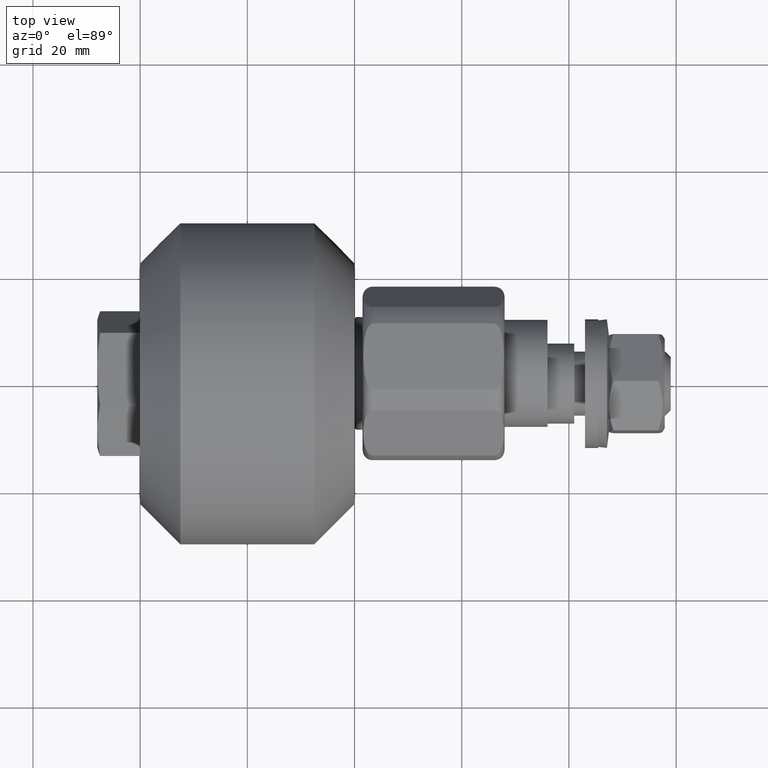
[diagram: clean part render]
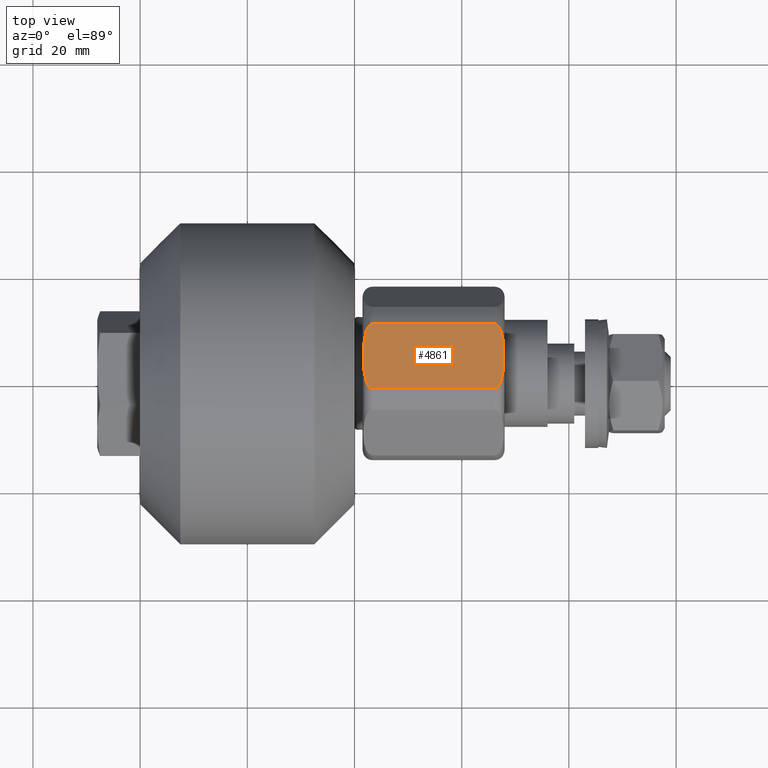
[diagram: same view with one face highlighted and labeled with its STEP entity id]
A machine part, top view. The second image highlights one B-rep face of the part: STEP entity #4861.
In plain terms, the highlighted planar face has unit normal (-0, 0.198, 0.9802).
Its self-contained STEP definition (entity closure, byte-faithful):
#194=B_SPLINE_CURVE_WITH_KNOTS('',3,(#7402,#7403,#7404,#7405,#7406,#7407,
#7408,#7409,#7410,#7411,#7412,#7413,#7414,#7415,#7416,#7417,#7418,#7419,
#7420,#7421,#7422,#7423,#7424),.UNSPECIFIED.,.F.,.F.,(4,2,2,2,2,3,2,2,2,
2,4),(-0.65445505176569,-0.615458381337922,-0.55918216331077,-0.457887403956305,
-0.228943701978152,0.,0.228943701978153,0.457887403956305,0.559182163310771,
0.615458381337922,0.65445505176569),.UNSPECIFIED.);
#202=B_SPLINE_CURVE_WITH_KNOTS('',3,(#7596,#7597,#7598,#7599,#7600,#7601,
#7602,#7603,#7604,#7605,#7606,#7607,#7608,#7609,#7610,#7611,#7612,#7613,
#7614,#7615,#7616,#7617),.UNSPECIFIED.,.F.,.F.,(4,2,2,2,2,2,2,2,2,2,4),
(0.65445505176569,0.693451722193457,0.749727940220609,0.851022699575074,
1.07996640155323,1.30891010353138,1.53785380550953,1.76679750748768,1.86809226684215,
1.9243684848693,1.96336515529707),.UNSPECIFIED.);
#385=PLANE('',#5380);
#605=FACE_OUTER_BOUND('',#883,.T.);
#883=EDGE_LOOP('',(#3417,#3418,#3419,#3420));
#1171=LINE('',#7708,#1461);
#1172=LINE('',#7710,#1462);
#1461=VECTOR('',#6042,10.);
#1462=VECTOR('',#6045,10.);
#2029=VERTEX_POINT('',#7399);
#2030=VERTEX_POINT('',#7401);
#2044=VERTEX_POINT('',#7593);
#2045=VERTEX_POINT('',#7595);
#2564=EDGE_CURVE('',#2030,#2029,#194,.T.);
#2579=EDGE_CURVE('',#2045,#2044,#202,.T.);
#2594=EDGE_CURVE('',#2044,#2030,#1171,.T.);
#2595=EDGE_CURVE('',#2029,#2045,#1172,.T.);
#3417=ORIENTED_EDGE('',*,*,#2564,.T.);
#3418=ORIENTED_EDGE('',*,*,#2595,.T.);
#3419=ORIENTED_EDGE('',*,*,#2579,.T.);
#3420=ORIENTED_EDGE('',*,*,#2594,.T.);
#4861=ADVANCED_FACE('',(#605),#385,.T.);
#5380=AXIS2_PLACEMENT_3D('',#7709,#6043,#6044);
#6042=DIRECTION('',(1.,0.,0.));
#6043=DIRECTION('center_axis',(0.,0.866025403784438,-0.5));
#6044=DIRECTION('ref_axis',(0.,-0.5,-0.866025403784438));
#6045=DIRECTION('',(-1.,0.,0.));
#7399=CARTESIAN_POINT('',(11.25,9.86538105676656,-12.9126587736528));
#7401=CARTESIAN_POINT('',(11.25,16.1153810567666,-2.08734122634726));
#7402=CARTESIAN_POINT('Ctrl Pts',(11.25,16.1153810567666,-2.08734122634726));
#7403=CARTESIAN_POINT('Ctrl Pts',(11.3799889014259,16.1153810567666,-2.08734122634726));
#7404=CARTESIAN_POINT('Ctrl Pts',(11.5301733976963,16.0943070090345,-2.12384254774028));
#7405=CARTESIAN_POINT('Ctrl Pts',(11.8106276528386,16.0198084959235,-2.25287775753702));
#7406=CARTESIAN_POINT('Ctrl Pts',(11.9729148831963,15.9418100050569,-2.38797510663163));
#7407=CARTESIAN_POINT('Ctrl Pts',(12.2949896343247,15.7343604138928,-2.74728833853728));
#7408=CARTESIAN_POINT('Ctrl Pts',(12.4633942317916,15.5500984102709,-3.06643949071469));
#7409=CARTESIAN_POINT('Ctrl Pts',(12.8226536595242,15.0298383762869,-3.96755630272264));
#7410=CARTESIAN_POINT('Ctrl Pts',(12.9412026717376,14.6199911202412,-4.67743257353645));
#7411=CARTESIAN_POINT('Ctrl Pts',(13.083465251009,13.7911156411975,-6.113087016388));
#7412=CARTESIAN_POINT('Ctrl Pts',(13.1040496217739,13.3719538933968,-6.83909646016823));
#7413=CARTESIAN_POINT('Ctrl Pts',(13.1040496217739,12.9903810567666,-7.50000000000001));
#7414=CARTESIAN_POINT('Ctrl Pts',(13.1040496217739,12.6088082201363,-8.16090353983179));
#7415=CARTESIAN_POINT('Ctrl Pts',(13.083465251009,12.1896464723356,-8.88691298361201));
#7416=CARTESIAN_POINT('Ctrl Pts',(12.9412026717376,11.360770993292,-10.3225674264636));
#7417=CARTESIAN_POINT('Ctrl Pts',(12.8226536595242,10.9509237372463,-11.0324436972774));
#7418=CARTESIAN_POINT('Ctrl Pts',(12.4633942317916,10.4306637032622,-11.9335605092853));
#7419=CARTESIAN_POINT('Ctrl Pts',(12.2949896343247,10.2464016996404,-12.2527116614627));
#7420=CARTESIAN_POINT('Ctrl Pts',(11.9729148831963,10.0389521084763,-12.6120248933684));
#7421=CARTESIAN_POINT('Ctrl Pts',(11.8106276528386,9.9609536176097,-12.747122242463));
#7422=CARTESIAN_POINT('Ctrl Pts',(11.5301733976963,9.88645510449861,-12.8761574522597));
#7423=CARTESIAN_POINT('Ctrl Pts',(11.3799889014259,9.86538105676657,-12.9126587736528));
#7424=CARTESIAN_POINT('Ctrl Pts',(11.25,9.86538105676657,-12.9126587736528));
#7593=CARTESIAN_POINT('',(-11.25,16.1153810567666,-2.08734122634726));
#7595=CARTESIAN_POINT('',(-11.25,9.86538105676656,-12.9126587736528));
#7596=CARTESIAN_POINT('Ctrl Pts',(-11.25,9.86538105676657,-12.9126587736528));
#7597=CARTESIAN_POINT('Ctrl Pts',(-11.3799889014259,9.86538105676657,-12.9126587736528));
#7598=CARTESIAN_POINT('Ctrl Pts',(-11.5301733976963,9.88645510449861,-12.8761574522597));
#7599=CARTESIAN_POINT('Ctrl Pts',(-11.8106276528386,9.9609536176097,-12.747122242463));
#7600=CARTESIAN_POINT('Ctrl Pts',(-11.9729148831963,10.0389521084763,-12.6120248933684));
#7601=CARTESIAN_POINT('Ctrl Pts',(-12.2949896343247,10.2464016996404,-12.2527116614627));
#7602=CARTESIAN_POINT('Ctrl Pts',(-12.4633942317916,10.4306637032622,-11.9335605092853));
#7603=CARTESIAN_POINT('Ctrl Pts',(-12.8226536595242,10.9509237372463,-11.0324436972774));
#7604=CARTESIAN_POINT('Ctrl Pts',(-12.9412026717376,11.360770993292,-10.3225674264636));
#7605=CARTESIAN_POINT('Ctrl Pts',(-13.083465251009,12.1896464723356,-8.88691298361201));
#7606=CARTESIAN_POINT('Ctrl Pts',(-13.1040496217739,12.6088082201363,-8.16090353983179));
#7607=CARTESIAN_POINT('Ctrl Pts',(-13.1040496217739,13.3719538933968,-6.83909646016823));
#7608=CARTESIAN_POINT('Ctrl Pts',(-13.083465251009,13.7911156411975,-6.113087016388));
#7609=CARTESIAN_POINT('Ctrl Pts',(-12.9412026717376,14.6199911202412,-4.67743257353645));
#7610=CARTESIAN_POINT('Ctrl Pts',(-12.8226536595242,15.0298383762869,-3.96755630272264));
#7611=CARTESIAN_POINT('Ctrl Pts',(-12.4633942317916,15.5500984102709,-3.06643949071469));
#7612=CARTESIAN_POINT('Ctrl Pts',(-12.2949896343247,15.7343604138928,-2.74728833853728));
#7613=CARTESIAN_POINT('Ctrl Pts',(-11.9729148831963,15.9418100050569,-2.38797510663163));
#7614=CARTESIAN_POINT('Ctrl Pts',(-11.8106276528386,16.0198084959235,-2.25287775753702));
#7615=CARTESIAN_POINT('Ctrl Pts',(-11.5301733976963,16.0943070090345,-2.12384254774028));
#7616=CARTESIAN_POINT('Ctrl Pts',(-11.3799889014259,16.1153810567666,-2.08734122634726));
#7617=CARTESIAN_POINT('Ctrl Pts',(-11.25,16.1153810567666,-2.08734122634726));
#7708=CARTESIAN_POINT('',(-13.25,16.1153810567666,-2.08734122634726));
#7709=CARTESIAN_POINT('Origin',(13.25,17.3205080756888,-1.11022302462516E-14));
#7710=CARTESIAN_POINT('',(-13.25,9.86538105676656,-12.9126587736528));